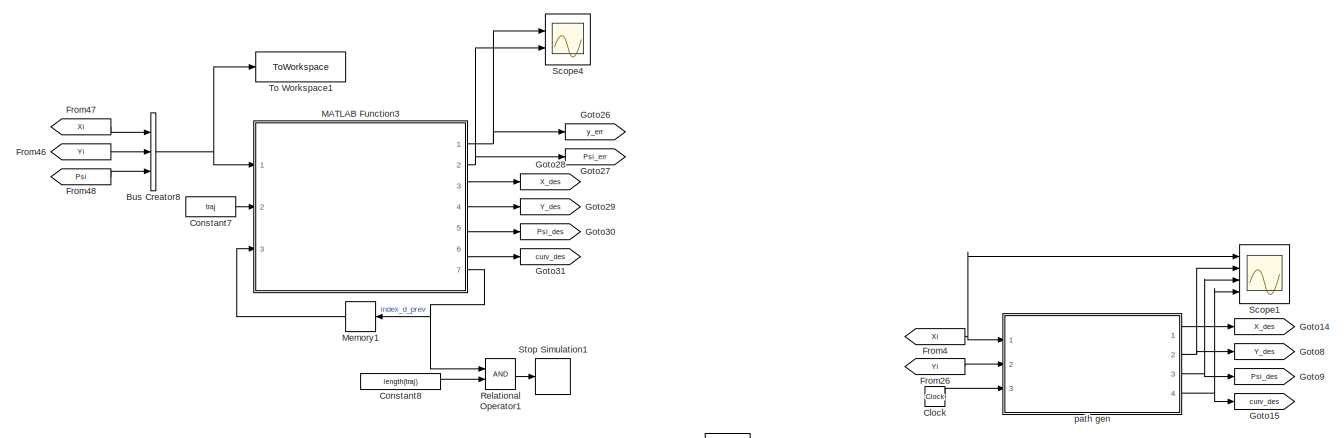
[diagram: root canvas - part 1/5, top left region]
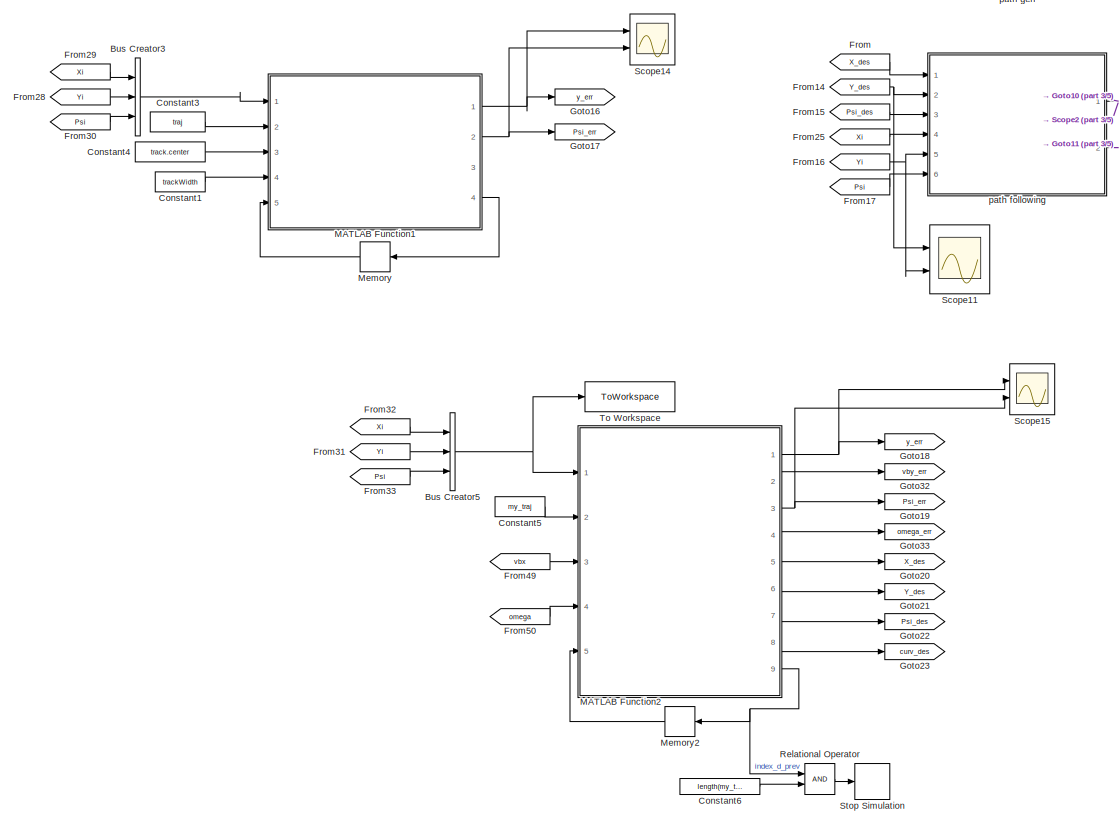
[diagram: root canvas - part 2/5, middle left region]
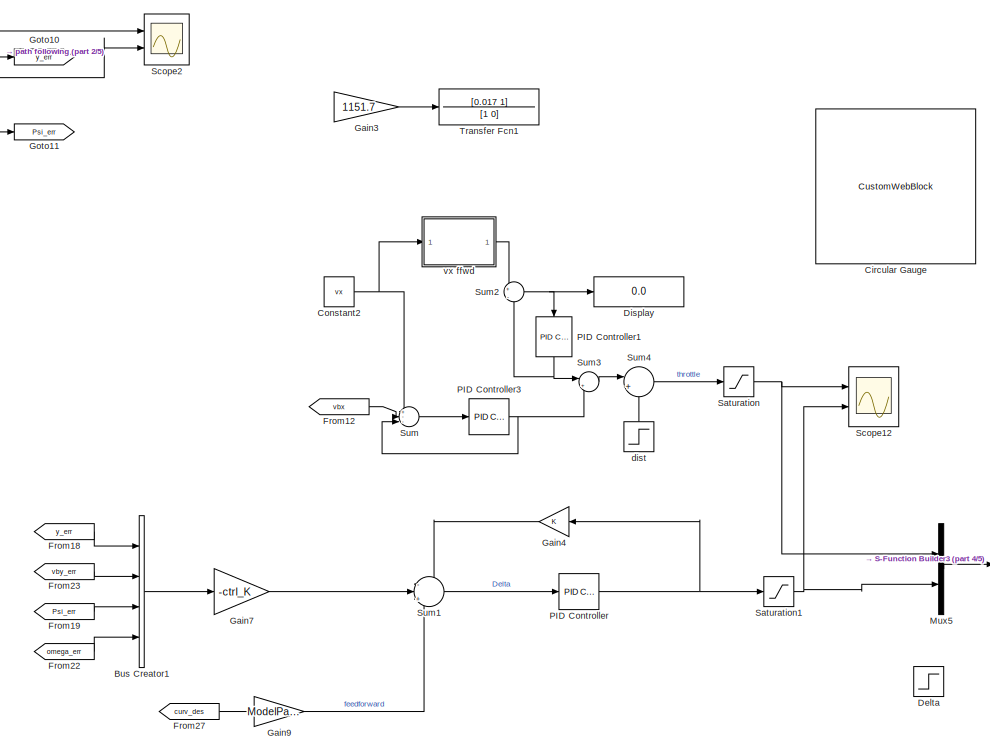
[diagram: root canvas - part 3/5, central region]
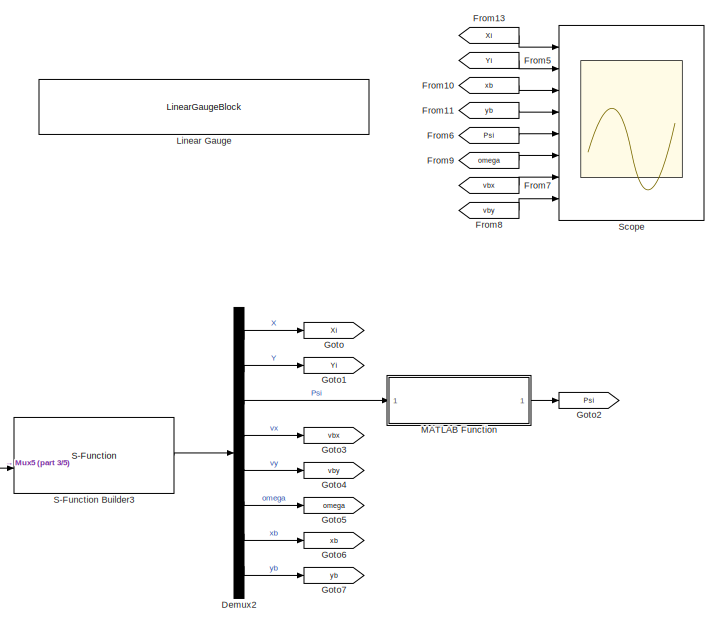
[diagram: root canvas - part 4/5, middle right region]
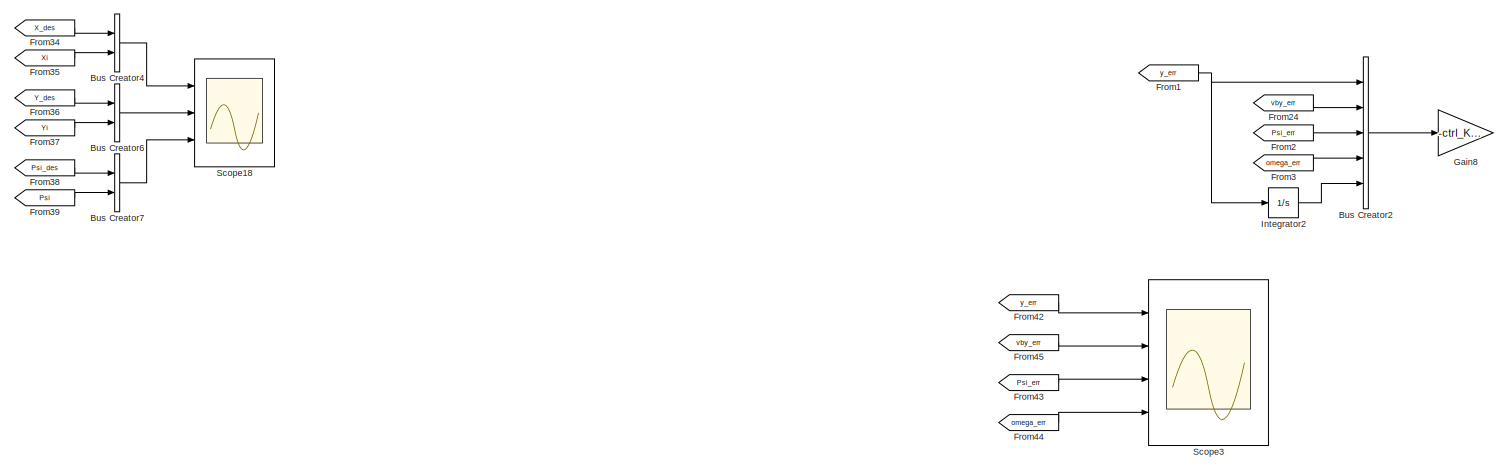
[diagram: root canvas - part 5/5, bottom center region]
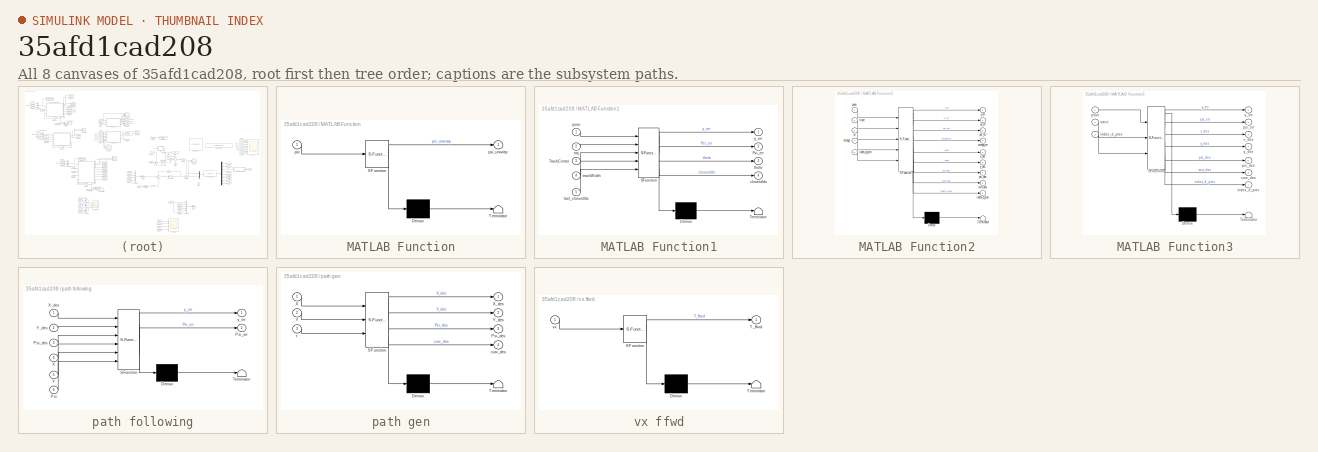
[diagram: thumbnail index - all 8 canvases of the model, root first then tree order]
MODEL slx_35afd1cad208
KIND model
CONFIG AbsTol = auto
CONFIG EnableMultiTasking = off
CONFIG FixedStep = 0.001
CONFIG InitFcn = init_car_dynamic
CONFIG MaxStep = auto
CONFIG MinStep = auto
CONFIG RelTol = 1e-3
CONFIG SampleTimeConstraint = Unconstrained
CONFIG SolverName = FixedStepAuto
CONFIG StartTime = 0.0
CONFIG StopFcn = plot_traj_results
CONFIG StopTime = 40
BLOCK [BusCreator] Bus Creator1
  DisplayOption = bar
  InheritFromInputs = on
  Inputs = 4
  Ports = [4, 1]
BLOCK [BusCreator] Bus Creator2
  DisplayOption = bar
  InheritFromInputs = on
  Inputs = 5
  Ports = [5, 1]
BLOCK [BusCreator] Bus Creator3
  Commented = on
  DisplayOption = bar
  InheritFromInputs = on
  Inputs = 3
  Ports = [3, 1]
BLOCK [BusCreator] Bus Creator4
  DisplayOption = bar
  InheritFromInputs = on
  Inputs = 2
  Ports = [2, 1]
BLOCK [BusCreator] Bus Creator5
  DisplayOption = bar
  InheritFromInputs = on
  Inputs = 3
  Ports = [3, 1]
BLOCK [BusCreator] Bus Creator6
  DisplayOption = bar
  InheritFromInputs = on
  Inputs = 2
  Ports = [2, 1]
BLOCK [BusCreator] Bus Creator7
  DisplayOption = bar
  InheritFromInputs = on
  Inputs = 2
  Ports = [2, 1]
BLOCK [BusCreator] Bus Creator8
  Commented = on
  DisplayOption = bar
  InheritFromInputs = on
  Inputs = 3
  Ports = [3, 1]
BLOCK [CustomWebBlock] Circular Gauge
  Configuration = {"components":[{"name":"CircularScaleComponent","settings":{"bounds":{"max":1,"min":0,"tickInterval":"auto"},"direction":"cw","flipLimits":0,"innerRadius":0.75,"internalTickHeightScaleFactor":1,"labelColor":[255,252,199],"labelFont":{"font":"Arial","fontSize":12},"labelTransparency":1,"minorTickHeightScaleFactor":0.2,"needleImage":{"size":[1890,567],"src":"data:image\/svg+xml;base64,PD94bWwgdmVyc2...<+16013ch>
  LabelPosition = Hide
  ShowInitialText = on
BLOCK [Clock] Clock
  Commented = on
BLOCK [Constant] Constant1
  Commented = on
  Value = trackWidth
BLOCK [Constant] Constant2
  Value = vx
BLOCK [Constant] Constant3
  Commented = on
  OutDataTypeStr = Bus: traj_bus
  Value = traj
  VectorParams1D = off
BLOCK [Constant] Constant4
  Commented = on
  Value = track.center
BLOCK [Constant] Constant5
  Value = my_traj
BLOCK [Constant] Constant6
  Value = length(my_traj)
BLOCK [Constant] Constant7
  Commented = on
  Value = traj
BLOCK [Constant] Constant8
  Commented = on
  Value = length(traj)
BLOCK [Step] Delta
  After = 0.05
  SampleTime = 0
  Time = 5
BLOCK [Demux] Demux2
  Outputs = 8
  Ports = [1, 8]
BLOCK [Display] Display
  Decimation = 1
  Ports = [1]
BLOCK [From] From
  Commented = on
  GotoTag = X_des
BLOCK [From] From1
  GotoTag = y_err
BLOCK [From] From10
  GotoTag = xb
BLOCK [From] From11
  GotoTag = yb
BLOCK [From] From12
  GotoTag = vbx
BLOCK [From] From13
  GotoTag = Xi
BLOCK [From] From14
  Commented = on
  GotoTag = Y_des
BLOCK [From] From15
  Commented = on
  GotoTag = Psi_des
BLOCK [From] From16
  Commented = on
  GotoTag = Yi
BLOCK [From] From17
  Commented = on
  GotoTag = Psi
BLOCK [From] From18
  GotoTag = y_err
BLOCK [From] From19
  GotoTag = Psi_err
BLOCK [From] From2
  GotoTag = Psi_err
BLOCK [From] From22
  GotoTag = omega_err
BLOCK [From] From23
  GotoTag = vby_err
BLOCK [From] From24
  GotoTag = vby_err
BLOCK [From] From25
  Commented = on
  GotoTag = Xi
BLOCK [From] From26
  Commented = on
  GotoTag = Yi
BLOCK [From] From27
  GotoTag = curv_des
BLOCK [From] From28
  Commented = on
  GotoTag = Yi
BLOCK [From] From29
  Commented = on
  GotoTag = Xi
BLOCK [From] From3
  GotoTag = omega_err
BLOCK [From] From30
  Commented = on
  GotoTag = Psi
BLOCK [From] From31
  GotoTag = Yi
BLOCK [From] From32
  GotoTag = Xi
BLOCK [From] From33
  GotoTag = Psi
BLOCK [From] From34
  GotoTag = X_des
BLOCK [From] From35
  GotoTag = Xi
BLOCK [From] From36
  GotoTag = Y_des
BLOCK [From] From37
  GotoTag = Yi
BLOCK [From] From38
  GotoTag = Psi_des
BLOCK [From] From39
  GotoTag = Psi
BLOCK [From] From4
  Commented = on
  GotoTag = Xi
BLOCK [From] From42
  GotoTag = y_err
BLOCK [From] From43
  GotoTag = Psi_err
BLOCK [From] From44
  GotoTag = omega_err
BLOCK [From] From45
  GotoTag = vby_err
BLOCK [From] From46
  Commented = on
  GotoTag = Yi
BLOCK [From] From47
  Commented = on
  GotoTag = Xi
BLOCK [From] From48
  Commented = on
  GotoTag = Psi
BLOCK [From] From49
  GotoTag = vbx
BLOCK [From] From5
  GotoTag = Yi
BLOCK [From] From50
  GotoTag = omega
BLOCK [From] From6
  GotoTag = Psi
BLOCK [From] From7
  GotoTag = vbx
BLOCK [From] From8
  GotoTag = vby
BLOCK [From] From9
  GotoTag = omega
BLOCK [Gain] Gain3
  Gain = 1151.7
BLOCK [Gain] Gain4
BLOCK [Gain] Gain7
  Gain = -ctrl_K
  Multiplication = Matrix(K*u) (u vector)
BLOCK [Gain] Gain8
  Gain = -ctrl_K_lqi
  Multiplication = Matrix(K*u) (u vector)
BLOCK [Gain] Gain9
  Gain = ModelParams.L
BLOCK [Goto] Goto
  GotoTag = Xi
BLOCK [Goto] Goto1
  GotoTag = Yi
BLOCK [Goto] Goto10
  Commented = on
  GotoTag = y_err
BLOCK [Goto] Goto11
  Commented = on
  GotoTag = Psi_err
BLOCK [Goto] Goto14
  Commented = on
  GotoTag = X_des
BLOCK [Goto] Goto15
  Commented = on
  GotoTag = curv_des
BLOCK [Goto] Goto16
  Commented = on
  GotoTag = y_err
BLOCK [Goto] Goto17
  Commented = on
  GotoTag = Psi_err
BLOCK [Goto] Goto18
  GotoTag = y_err
BLOCK [Goto] Goto19
  GotoTag = Psi_err
BLOCK [Goto] Goto2
  GotoTag = Psi
BLOCK [Goto] Goto20
  GotoTag = X_des
BLOCK [Goto] Goto21
  GotoTag = Y_des
BLOCK [Goto] Goto22
  GotoTag = Psi_des
BLOCK [Goto] Goto23
  GotoTag = curv_des
BLOCK [Goto] Goto26
  Commented = on
  GotoTag = y_err
BLOCK [Goto] Goto27
  Commented = on
  GotoTag = Psi_err
BLOCK [Goto] Goto28
  Commented = on
  GotoTag = X_des
BLOCK [Goto] Goto29
  Commented = on
  GotoTag = Y_des
BLOCK [Goto] Goto3
  GotoTag = vbx
BLOCK [Goto] Goto30
  Commented = on
  GotoTag = Psi_des
BLOCK [Goto] Goto31
  Commented = on
  GotoTag = curv_des
BLOCK [Goto] Goto32
  GotoTag = vby_err
BLOCK [Goto] Goto33
  GotoTag = omega_err
BLOCK [Goto] Goto4
  GotoTag = vby
BLOCK [Goto] Goto5
  GotoTag = omega
BLOCK [Goto] Goto6
  GotoTag = xb
BLOCK [Goto] Goto7
  GotoTag = yb
BLOCK [Goto] Goto8
  Commented = on
  GotoTag = Y_des
BLOCK [Goto] Goto9
  Commented = on
  GotoTag = Psi_des
BLOCK [Integrator] Integrator2
  Ports = [1, 1]
BLOCK [LinearGaugeBlock] Linear Gauge
  ScaleMax = 1.5
  ScaleMin = -1.5
BLOCK [SubSystem] MATLAB Function
  ErrorFcn = Stateflow.Translate.translate
  PermitHierarchicalResolution = ExplicitOnly
  Ports = [1, 1]
  RequestExecContextInheritance = off
  SFBlockType = MATLAB Function
  TreatAsAtomicUnit = on
BLOCK [Demux] MATLAB Function/ Demux 
  Outputs = 1
  Ports = [1, 1]
BLOCK [S-Function] MATLAB Function/ SFunction 
  EnableBusSupport = on
  FunctionName = sf_sfun
  PortCounts = [1 2]
  Ports = [1, 2]
  SFcnIsStateOwnerBlock = off
  SFunctionDeploymentMode = off
  Tag = Stateflow S-Function 3
BLOCK [Terminator] MATLAB Function/ Terminator 
BLOCK [Inport] MATLAB Function/psi
BLOCK [Outport] MATLAB Function/psi_unwrap
BLOCK [SubSystem] MATLAB Function1
  Commented = on
  ErrorFcn = Stateflow.Translate.translate
  PermitHierarchicalResolution = ExplicitOnly
  Ports = [5, 4]
  RequestExecContextInheritance = off
  SFBlockType = MATLAB Function
  TreatAsAtomicUnit = on
BLOCK [Demux] MATLAB Function1/ Demux 
  Outputs = 1
  Ports = [1, 1]
BLOCK [S-Function] MATLAB Function1/ SFunction 
  EnableBusSupport = on
  FunctionName = sf_sfun
  PortCounts = [5 5]
  Ports = [5, 5]
  SFcnIsStateOwnerBlock = off
  SFunctionDeploymentMode = off
  Tag = Stateflow S-Function 4
BLOCK [Terminator] MATLAB Function1/ Terminator 
BLOCK [Outport] MATLAB Function1/Psi_err
  Port = 2
BLOCK [Inport] MATLAB Function1/TrackCenter
  Port = 3
BLOCK [Outport] MATLAB Function1/closestIdx
  Port = 4
BLOCK [Inport] MATLAB Function1/last_closestIdx
  Port = 5
BLOCK [Inport] MATLAB Function1/pose
BLOCK [Outport] MATLAB Function1/theta
  Port = 3
BLOCK [Inport] MATLAB Function1/trackWidth
  Port = 4
BLOCK [Inport] MATLAB Function1/traj
  Port = 2
BLOCK [Outport] MATLAB Function1/y_err
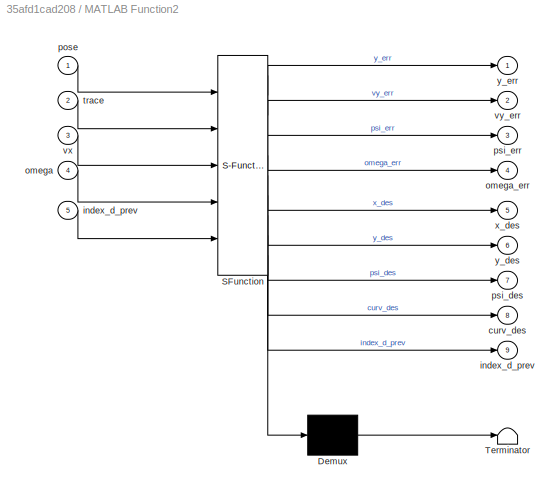
BLOCK [SubSystem] MATLAB Function2
  ErrorFcn = Stateflow.Translate.translate
  PermitHierarchicalResolution = ExplicitOnly
  Ports = [5, 9]
  RequestExecContextInheritance = off
  SFBlockType = MATLAB Function
  TreatAsAtomicUnit = on
BLOCK [Demux] MATLAB Function2/ Demux 
  Outputs = 1
  Ports = [1, 1]
BLOCK [S-Function] MATLAB Function2/ SFunction 
  EnableBusSupport = on
  FunctionName = sf_sfun
  PortCounts = [5 10]
  Ports = [5, 10]
  SFcnIsStateOwnerBlock = off
  SFunctionDeploymentMode = off
  Tag = Stateflow S-Function 5
BLOCK [Terminator] MATLAB Function2/ Terminator 
BLOCK [Outport] MATLAB Function2/curv_des
  Port = 8
BLOCK [Outport] MATLAB Function2/index_d_prev
  Port = 9
BLOCK [Inport] MATLAB Function2/index_d_prev 
  Port = 5
BLOCK [Inport] MATLAB Function2/omega
  Port = 4
BLOCK [Outport] MATLAB Function2/omega_err
  Port = 4
BLOCK [Inport] MATLAB Function2/pose
BLOCK [Outport] MATLAB Function2/psi_des
  Port = 7
BLOCK [Outport] MATLAB Function2/psi_err
  Port = 3
BLOCK [Inport] MATLAB Function2/trace
  Port = 2
BLOCK [Inport] MATLAB Function2/vx
  Port = 3
BLOCK [Outport] MATLAB Function2/vy_err
  Port = 2
BLOCK [Outport] MATLAB Function2/x_des
  Port = 5
BLOCK [Outport] MATLAB Function2/y_des
  Port = 6
BLOCK [Outport] MATLAB Function2/y_err
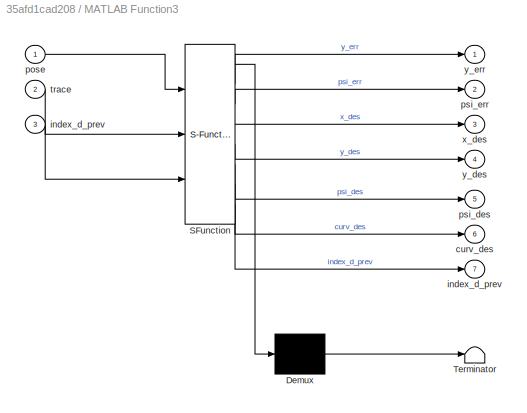
BLOCK [SubSystem] MATLAB Function3
  Commented = on
  ErrorFcn = Stateflow.Translate.translate
  PermitHierarchicalResolution = ExplicitOnly
  Ports = [3, 7]
  RequestExecContextInheritance = off
  SFBlockType = MATLAB Function
  TreatAsAtomicUnit = on
BLOCK [Demux] MATLAB Function3/ Demux 
  Outputs = 1
  Ports = [1, 1]
BLOCK [S-Function] MATLAB Function3/ SFunction 
  EnableBusSupport = on
  FunctionName = sf_sfun
  PortCounts = [3 8]
  Ports = [3, 8]
  SFcnIsStateOwnerBlock = off
  SFunctionDeploymentMode = off
  Tag = Stateflow S-Function 7
BLOCK [Terminator] MATLAB Function3/ Terminator 
BLOCK [Outport] MATLAB Function3/curv_des
  Port = 6
BLOCK [Outport] MATLAB Function3/index_d_prev
  Port = 7
BLOCK [Inport] MATLAB Function3/index_d_prev 
  Port = 3
BLOCK [Inport] MATLAB Function3/pose
BLOCK [Outport] MATLAB Function3/psi_des
  Port = 5
BLOCK [Outport] MATLAB Function3/psi_err
  Port = 2
BLOCK [Inport] MATLAB Function3/trace
  Port = 2
BLOCK [Outport] MATLAB Function3/x_des
  Port = 3
BLOCK [Outport] MATLAB Function3/y_des
  Port = 4
BLOCK [Outport] MATLAB Function3/y_err
BLOCK [Memory] Memory
  Commented = on
BLOCK [Memory] Memory1
  Commented = on
BLOCK [Memory] Memory2
BLOCK [Mux] Mux5
  DisplayOption = bar
  Inputs = 2
  Ports = [2, 1]
BLOCK [Reference] PID Controller  REF=slpidlib/PID Controller
  Ports = [1, 1]
  SourceBlock = slpidlib/PID Controller
  SourceProductBaseCode = SL
  SourceType = PID 1dof
BLOCK [Reference] PID Controller1  REF=slpidlib/PID Controller
  NameLocation = left
  Ports = [1, 1]
  SourceBlock = slpidlib/PID Controller
  SourceProductBaseCode = SL
  SourceType = PID 1dof
BLOCK [Reference] PID Controller3  REF=slpidlib/PID Controller
  Ports = [1, 1]
  SourceBlock = slpidlib/PID Controller
  SourceProductBaseCode = SL
  SourceType = PID 1dof
BLOCK [RelationalOperator] Relational Operator
  InputSameDT = off
  OutDataTypeStr = boolean
  Ports = [2, 1]
  RndMeth = Simplest
BLOCK [RelationalOperator] Relational Operator1
  Commented = on
  InputSameDT = off
  OutDataTypeStr = boolean
  Ports = [2, 1]
  RndMeth = Simplest
BLOCK [S-Function] S-Function Builder3
  CopyFcn = set_param(gcbh,'LinkStatus','none')
  EnableBusSupport = off
  FunctionName = car_fast_sfunc
  OpenFcn = sfunctionwizard(gcbh)
  Ports = [2, 1]
  SFcnIsStateOwnerBlock = off
  SFunctionDeploymentMode = off
  SFunctionModules = car_fast_sfunc_wrapper
BLOCK [Saturate] Saturation
  LowerLimit = 0
  UpperLimit = 1
BLOCK [Saturate] Saturation1
  LowerLimit = -pi/3
  UpperLimit = pi/3
BLOCK [Scope] Scope
  Floating = off
  NumInputPorts = 8
  Ports = [8]
  ScopeSpecificationString = Simulink.scopes.TimeScopeBlockCfg('CurrentConfiguration', extmgr.ConfigurationSet(extmgr.Configuration('Core','General UI',true),extmgr.Configuration('Core','Source UI',true),extmgr.Configuration('Sources','WiredSimulink',true,'DataLoggingVariableName','ScopeData1'),extmgr.Configuration('Visuals','Time Domain',true,'SerializedDisplays',{struct('MinYLimReal','-17.00419','MaxYLimReal','16.0254','YLa...<+6277ch>
BLOCK [Scope] Scope1
  Commented = on
  Floating = off
  NumInputPorts = 4
  Ports = [4]
  ScopeSpecificationString = Simulink.scopes.TimeScopeBlockCfg('CurrentConfiguration', extmgr.ConfigurationSet(extmgr.Configuration('Core','General UI',true),extmgr.Configuration('Core','Source UI',true),extmgr.Configuration('Sources','WiredSimulink',true,'DataLoggingVariableName','ScopeData1'),extmgr.Configuration('Visuals','Time Domain',true,'SerializedDisplays',{struct('MinYLimReal','-18.50871','MaxYLimReal','166.57841','Y...<+3411ch>
BLOCK [Scope] Scope11
  Commented = on
  Floating = off
  NumInputPorts = 2
  Ports = [2]
  ScopeSpecificationString = Simulink.scopes.TimeScopeBlockCfg('CurrentConfiguration', extmgr.ConfigurationSet(extmgr.Configuration('Core','General UI',true),extmgr.Configuration('Core','Source UI',true),extmgr.Configuration('Sources','WiredSimulink',true,'DataLoggingVariableName','ScopeData3'),extmgr.Configuration('Visuals','Time Domain',true,'SerializedDisplays',{struct('MinYLimReal','-1.25','MaxYLimReal','1.25','YLabelReal...<+1435ch>
BLOCK [Scope] Scope12
  Floating = off
  NumInputPorts = 2
  Ports = [2]
  ScopeSpecificationString = Simulink.scopes.TimeScopeBlockCfg('CurrentConfiguration', extmgr.ConfigurationSet(extmgr.Configuration('Core','General UI',true),extmgr.Configuration('Core','Source UI',true),extmgr.Configuration('Sources','WiredSimulink',true,'DataLoggingVariableName','ScopeData1'),extmgr.Configuration('Visuals','Time Domain',true,'SerializedDisplays',{struct('MinYLimReal','-0.125','MaxYLimReal','1.125','YLabelRe...<+2110ch>
BLOCK [Scope] Scope14
  Commented = on
  Floating = off
  NumInputPorts = 2
  Ports = [2]
  ScopeSpecificationString = Simulink.scopes.TimeScopeBlockCfg('CurrentConfiguration', extmgr.ConfigurationSet(extmgr.Configuration('Core','General UI',true),extmgr.Configuration('Core','Source UI',true),extmgr.Configuration('Sources','WiredSimulink',true,'DataLoggingVariableName','ScopeData1'),extmgr.Configuration('Visuals','Time Domain',true,'SerializedDisplays',{struct('MinYLimReal','-0.22073','MaxYLimReal','0.16661','YLab...<+2088ch>
BLOCK [Scope] Scope15
  Floating = off
  NumInputPorts = 2
  Ports = [2]
  ScopeSpecificationString = Simulink.scopes.TimeScopeBlockCfg('CurrentConfiguration', extmgr.ConfigurationSet(extmgr.Configuration('Core','General UI',true),extmgr.Configuration('Core','Source UI',true),extmgr.Configuration('Sources','WiredSimulink',true,'DataLoggingVariableName','ScopeData2'),extmgr.Configuration('Visuals','Time Domain',true,'SerializedDisplays',{struct('MinYLimReal','-0.73247','MaxYLimReal','0.18373','YLab...<+2160ch>
BLOCK [Scope] Scope18
  Floating = off
  NumInputPorts = 3
  Ports = [3]
  ScopeSpecificationString = Simulink.scopes.TimeScopeBlockCfg('CurrentConfiguration', extmgr.ConfigurationSet(extmgr.Configuration('Core','General UI',true),extmgr.Configuration('Core','Source UI',true),extmgr.Configuration('Sources','WiredSimulink',true,'DataLoggingVariableName','ScopeData5'),extmgr.Configuration('Visuals','Time Domain',true,'SerializedDisplays',{struct('MinYLimReal','-2.76827','MaxYLimReal','15.12944','YLa...<+2798ch>
BLOCK [Scope] Scope2
  Commented = on
  Floating = off
  NumInputPorts = 2
  Ports = [2]
  ScopeSpecificationString = Simulink.scopes.TimeScopeBlockCfg('CurrentConfiguration', extmgr.ConfigurationSet(extmgr.Configuration('Core','General UI',true),extmgr.Configuration('Core','Source UI',true),extmgr.Configuration('Sources','WiredSimulink',true,'DataLoggingVariableName','ScopeData2'),extmgr.Configuration('Visuals','Time Domain',true,'SerializedDisplays',{struct('MinYLimReal','-0.22073','MaxYLimReal','0.16661','YLab...<+2130ch>
BLOCK [Scope] Scope3
  Floating = off
  NumInputPorts = 4
  Ports = [4]
  ScopeSpecificationString = Simulink.scopes.TimeScopeBlockCfg('CurrentConfiguration', extmgr.ConfigurationSet(extmgr.Configuration('Core','General UI',true),extmgr.Configuration('Core','Source UI',true),extmgr.Configuration('Sources','WiredSimulink',true,'DataLoggingVariableName','ScopeData1'),extmgr.Configuration('Visuals','Time Domain',true,'SerializedDisplays',{struct('MinYLimReal','-0.19749','MaxYLimReal','0.14418','YLab...<+3472ch>
BLOCK [Scope] Scope4
  Commented = on
  Floating = off
  NumInputPorts = 2
  Ports = [2]
  ScopeSpecificationString = Simulink.scopes.TimeScopeBlockCfg('CurrentConfiguration', extmgr.ConfigurationSet(extmgr.Configuration('Core','General UI',true),extmgr.Configuration('Core','Source UI',true),extmgr.Configuration('Sources','WiredSimulink',true,'DataLoggingVariableName','ScopeData1'),extmgr.Configuration('Visuals','Time Domain',true,'SerializedDisplays',{struct('MinYLimReal','-0.73247','MaxYLimReal','0.18373','YLab...<+2160ch>
BLOCK [Stop] Stop Simulation
BLOCK [Stop] Stop Simulation1
  Commented = on
BLOCK [Sum] Sum
  Inputs = +--|
  Ports = [3, 1]
BLOCK [Sum] Sum1
  Inputs = -|+|+
  Ports = [3, 1]
BLOCK [Sum] Sum2
  Inputs = +|-
  Ports = [2, 1]
BLOCK [Sum] Sum3
  Inputs = |++
  Ports = [2, 1]
BLOCK [Sum] Sum4
  Inputs = |++
  Ports = [2, 1]
BLOCK [ToWorkspace] To Workspace
  FixptAsFi = on
  MaxDataPoints = inf
  Ports = [1]
  SampleTime = -1
  SaveFormat = Timeseries
  VariableName = simout
BLOCK [ToWorkspace] To Workspace1
  Commented = on
  FixptAsFi = on
  MaxDataPoints = inf
  Ports = [1]
  SampleTime = -1
  SaveFormat = Timeseries
  VariableName = simout1
BLOCK [TransferFcn] Transfer Fcn1
  Denominator = [1 0]
  Numerator = [0.017 1]
BLOCK [Step] dist
  After = -0.05
  NameLocation = right
  SampleTime = 0
BLOCK [SubSystem] path following
  Commented = on
  ErrorFcn = Stateflow.Translate.translate
  PermitHierarchicalResolution = ExplicitOnly
  Ports = [6, 2]
  RequestExecContextInheritance = off
  SFBlockType = MATLAB Function
  TreatAsAtomicUnit = on
BLOCK [Demux] path following/ Demux 
  Outputs = 1
  Ports = [1, 1]
BLOCK [S-Function] path following/ SFunction 
  EnableBusSupport = on
  FunctionName = sf_sfun
  PortCounts = [6 3]
  Ports = [6, 3]
  SFcnIsStateOwnerBlock = off
  SFunctionDeploymentMode = off
  Tag = Stateflow S-Function 1
BLOCK [Terminator] path following/ Terminator 
BLOCK [Inport] path following/Psi
  Port = 6
BLOCK [Inport] path following/Psi_des
  Port = 3
BLOCK [Outport] path following/Psi_err
  Port = 2
BLOCK [Inport] path following/X
  Port = 4
BLOCK [Inport] path following/X_des
BLOCK [Inport] path following/Y
  Port = 5
BLOCK [Inport] path following/Y_des
  Port = 2
BLOCK [Outport] path following/y_err
BLOCK [SubSystem] path gen
  Commented = on
  ErrorFcn = Stateflow.Translate.translate
  PermitHierarchicalResolution = ExplicitOnly
  Ports = [3, 4]
  RequestExecContextInheritance = off
  SFBlockType = MATLAB Function
  TreatAsAtomicUnit = on
BLOCK [Demux] path gen/ Demux 
  Outputs = 1
  Ports = [1, 1]
BLOCK [S-Function] path gen/ SFunction 
  EnableBusSupport = on
  FunctionName = sf_sfun
  PortCounts = [3 5]
  Ports = [3, 5]
  SFcnIsStateOwnerBlock = off
  SFunctionDeploymentMode = off
  Tag = Stateflow S-Function 2
BLOCK [Terminator] path gen/ Terminator 
BLOCK [Outport] path gen/Psi_des
  Port = 3
BLOCK [Inport] path gen/X
BLOCK [Outport] path gen/X_des
BLOCK [Inport] path gen/Y
  Port = 2
BLOCK [Outport] path gen/Y_des
  Port = 2
BLOCK [Outport] path gen/curv_des
  Port = 4
BLOCK [Inport] path gen/t
  Port = 3
BLOCK [SubSystem] vx ffwd
  ErrorFcn = Stateflow.Translate.translate
  PermitHierarchicalResolution = ExplicitOnly
  Ports = [1, 1]
  RequestExecContextInheritance = off
  SFBlockType = MATLAB Function
  TreatAsAtomicUnit = on
BLOCK [Demux] vx ffwd/ Demux 
  Outputs = 1
  Ports = [1, 1]
BLOCK [S-Function] vx ffwd/ SFunction 
  EnableBusSupport = on
  FunctionName = sf_sfun
  PortCounts = [1 2]
  Ports = [1, 2]
  SFcnIsStateOwnerBlock = off
  SFunctionDeploymentMode = off
  Tag = Stateflow S-Function 6
BLOCK [Terminator] vx ffwd/ Terminator 
BLOCK [Outport] vx ffwd/T_ffwd
BLOCK [Inport] vx ffwd/vx
LINE Bus Creator1:1 -> Gain7:1
LINE Bus Creator2:1 -> Gain8:1
LINE Bus Creator3:1 -> MATLAB Function1:1
LINE Bus Creator4:1 -> Scope18:1
NET Bus Creator5:1 -> MATLAB Function2:1, To Workspace:1
LINE Bus Creator6:1 -> Scope18:2
LINE Bus Creator7:1 -> Scope18:3
NET Bus Creator8:1 -> MATLAB Function3:1, To Workspace1:1
LINE Clock:1 -> path gen:3
LINE Constant1:1 -> MATLAB Function1:4
NET Constant2:1 -> Sum:1, vx ffwd:1
LINE Constant3:1 -> MATLAB Function1:2
LINE Constant4:1 -> MATLAB Function1:3
LINE Constant5:1 -> MATLAB Function2:2
LINE Constant6:1 -> Relational Operator:2
LINE Constant7:1 -> MATLAB Function3:2
LINE Constant8:1 -> Relational Operator1:2
LINE Demux2:1 -> Goto:1
LINE Demux2:2 -> Goto1:1
LINE Demux2:3 -> MATLAB Function:1
LINE Demux2:4 -> Goto3:1
LINE Demux2:5 -> Goto4:1
LINE Demux2:6 -> Goto5:1
LINE Demux2:7 -> Goto6:1
LINE Demux2:8 -> Goto7:1
LINE From10:1 -> Scope:3
LINE From11:1 -> Scope:4
LINE From12:1 -> Sum:2
LINE From13:1 -> Scope:1
NET From14:1 -> Scope11:1, path following:2
LINE From15:1 -> path following:3
NET From16:1 -> Scope11:2, path following:5
LINE From17:1 -> path following:6
LINE From18:1 -> Bus Creator1:1
LINE From19:1 -> Bus Creator1:3
NET From1:1 -> Bus Creator2:1, Integrator2:1
LINE From22:1 -> Bus Creator1:4
LINE From23:1 -> Bus Creator1:2
LINE From24:1 -> Bus Creator2:2
LINE From25:1 -> path following:4
LINE From26:1 -> path gen:2
LINE From27:1 -> Gain9:1
LINE From28:1 -> Bus Creator3:2
LINE From29:1 -> Bus Creator3:1
LINE From2:1 -> Bus Creator2:3
LINE From30:1 -> Bus Creator3:3
LINE From31:1 -> Bus Creator5:2
LINE From32:1 -> Bus Creator5:1
LINE From33:1 -> Bus Creator5:3
LINE From34:1 -> Bus Creator4:1
LINE From35:1 -> Bus Creator4:2
LINE From36:1 -> Bus Creator6:1
LINE From37:1 -> Bus Creator6:2
LINE From38:1 -> Bus Creator7:1
LINE From39:1 -> Bus Creator7:2
LINE From3:1 -> Bus Creator2:4
LINE From42:1 -> Scope3:1
LINE From43:1 -> Scope3:3
LINE From44:1 -> Scope3:4
LINE From45:1 -> Scope3:2
LINE From46:1 -> Bus Creator8:2
LINE From47:1 -> Bus Creator8:1
LINE From48:1 -> Bus Creator8:3
LINE From49:1 -> MATLAB Function2:3
NET From4:1 -> Scope1:1, path gen:1
LINE From50:1 -> MATLAB Function2:4
LINE From5:1 -> Scope:2
LINE From6:1 -> Scope:5
LINE From7:1 -> Scope:7
LINE From8:1 -> Scope:8
LINE From9:1 -> Scope:6
LINE From:1 -> path following:1
LINE Gain3:1 -> Transfer Fcn1:1
LINE Gain4:1 -> Sum1:1
LINE Gain7:1 -> Sum1:2
LINE Gain9:1 -> Sum1:3
LINE Integrator2:1 -> Bus Creator2:5
NET MATLAB Function1:1 -> Goto16:1, Scope14:1
NET MATLAB Function1:2 -> Goto17:1, Scope14:2
LINE MATLAB Function1:4 -> Memory:1
NET MATLAB Function2:1 -> Goto18:1, Scope15:1
LINE MATLAB Function2:2 -> Goto32:1
NET MATLAB Function2:3 -> Goto19:1, Scope15:2
LINE MATLAB Function2:4 -> Goto33:1
LINE MATLAB Function2:5 -> Goto20:1
LINE MATLAB Function2:6 -> Goto21:1
LINE MATLAB Function2:7 -> Goto22:1
LINE MATLAB Function2:8 -> Goto23:1
NET MATLAB Function2:9 -> Memory2:1, Relational Operator:1
NET MATLAB Function3:1 -> Goto26:1, Scope4:1
NET MATLAB Function3:2 -> Goto27:1, Scope4:2
LINE MATLAB Function3:3 -> Goto28:1
LINE MATLAB Function3:4 -> Goto29:1
LINE MATLAB Function3:5 -> Goto30:1
LINE MATLAB Function3:6 -> Goto31:1
NET MATLAB Function3:7 -> Memory1:1, Relational Operator1:1
LINE MATLAB Function:1 -> Goto2:1
LINE Memory1:1 -> MATLAB Function3:3
LINE Memory2:1 -> MATLAB Function2:5
LINE Memory:1 -> MATLAB Function1:5
LINE Mux5:1 -> S-Function Builder3:2
NET PID Controller1:1 -> Sum2:2, Sum3:1
NET PID Controller3:1 -> Sum3:2, Sum:3
NET PID Controller:1 -> Gain4:1, Saturation1:1
LINE Relational Operator1:1 -> Stop Simulation1:1
LINE Relational Operator:1 -> Stop Simulation:1
LINE S-Function Builder3:1 -> Demux2:1
NET Saturation1:1 -> Mux5:2, Scope12:2
NET Saturation:1 -> Mux5:1, Scope12:1
LINE Sum1:1 -> PID Controller:1
NET Sum2:1 -> Display:1, PID Controller1:1
LINE Sum3:1 -> Sum4:1
LINE Sum4:1 -> Saturation:1
LINE Sum:1 -> PID Controller3:1
LINE dist:1 -> Sum4:2
NET path following:1 -> Goto10:1, Scope2:1
NET path following:2 -> Goto11:1, Scope2:2
LINE path gen:1 -> Goto14:1
NET path gen:2 -> Goto8:1, Scope1:2
NET path gen:3 -> Goto9:1, Scope1:3
NET path gen:4 -> Goto15:1, Scope1:4
LINE vx ffwd:1 -> Sum2:1
note: NET lines group one-source signal fan-out (src -> all destinations, sorted); 1:1 wires keep LINE
CHART MATLAB Function3 states=1 transitions=1
  STATE_LABEL 'eML_blk_kernel()'
  STATE_LABEL 'SCRIPT:\nfunction [y_err,psi_err,x_des,y_des,psi_des,curv_des, index_d_prev]=cal_nearest_index(pose, trace, index_d_prev)\n\ntraj_x=trace(1,:);      %给定x坐标\ntraj_y=trace(2,:);      %给定y坐标\ntraj_psi=trace(3,:);    %给定航向角Psi\ntraj_k=trace(4,:);      %曲率\n\nx = pose(1);\ny = pose(2);\npsi = pose(3);\n\ndx=x*ones(1,length(traj_x))-traj_x;\ndy=y*ones(1,length(traj_y))-traj_y;\n\n% find the nearest index\nd=dx.^2+dy.^2...<+734ch>'
CHART path following states=1 transitions=1
  STATE_LABEL 'eML_blk_kernel()'
  STATE_LABEL 'SCRIPT:\nfunction [y_err,Psi_err] = path_following(X_des,Y_des,Psi_des,X,Y,Psi)\n\n\ny_err = (Y-Y_des)/cos(Psi)*2;\n\n% y_err = -(X-X_des)/sin(Psi);\n\nPsi_err = (Psi - Psi_des)*2;'
CHART path gen states=1 transitions=1
  STATE_LABEL 'eML_blk_kernel()'
  STATE_LABEL 'SCRIPT:\nfunction [X_des,Y_des,Psi_des,curv_des] = path_generator(X,Y,t)\n\npath_omega = 0.01+0.001*t;\nX_des=X;\nY_des=sin(path_omega*X);\nPsi_des = atan(path_omega*cos(path_omega*X));\n\n% TODO: add curvature: https://en.wikipedia.org/wiki/Curvature\n% curv_des = (-path_omega^2*sin(path_omega*X))/(1+(path_omega*cos(path_omega*X))^2)^1.5;\n\npath_omega = 0.3;\nX_des = 10*sin(path_omega*t);\nY_des = 10-10*cos(...<+122ch>'
CHART MATLAB Function states=1 transitions=1
  STATE_LABEL 'eML_blk_kernel()'
  STATE_LABEL 'SCRIPT:\nfunction psi_unwrap = unwrap(psi)\n\nif ( psi > pi)\n    psi = psi - 2*pi;\nend\n\nif( psi <= -pi)\n    psi = psi + 2*pi;\nend\n\npsi_unwrap = psi;\n'
CHART MATLAB Function1 states=1 transitions=1
  STATE_LABEL 'eML_blk_kernel()'
  STATE_LABEL 'SCRIPT:\nfunction [y_err, Psi_err, theta, closestIdx] = path_following(pose, traj, TrackCenter, trackWidth, last_closestIdx)\n%FINDTHETA returns theta, the index of the point on the centerline which is the\n%closest to the current position\n\n%the algorithm first performs a local search around a guess where the\n%closest point on the center line is if the error is too big (more than\n%half the track widt...<+2797ch>'
CHART MATLAB Function2 states=1 transitions=1
  STATE_LABEL 'eML_blk_kernel()'
  STATE_LABEL 'SCRIPT:\nfunction [y_err,vy_err,psi_err,omega_err,x_des,y_des,psi_des,curv_des, index_d_prev]=cal_nearest_index(pose,trace,vx, omega, index_d_prev)\n\ntraj_x=trace(1,:);      %给定x坐标\ntraj_y=trace(2,:);      %给定y坐标\ntraj_psi=trace(3,:);\ntraj_k=trace(4,:);      %曲率\n\n\nx = pose(1);\ny = pose(2);\npsi = pose(3);\n\ndx=x*ones(1,length(traj_x))-traj_x;\ndy=y*ones(1,length(traj_y))-traj_y;\n\n% find the nearest index...<+873ch>'
CHART vx ffwd states=1 transitions=1
  STATE_LABEL 'eML_blk_kernel()'
  STATE_LABEL 'SCRIPT:\nfunction T_ffwd = fcn(vx)\n\nm = 0.041;\ng = 9.8;\nIz = 27.8e-6;\nlf = 0.029;\nlr = 0.033;\nCm1=0.287;\nCm2=0.0545;\nCr0=0.0218;\nCr2=0.00035;\n\nNf = m*g*lr/(lf+lr);\nNr = m*g*lf/(lf+lr);\n\nT_ffwd = -(-Cr0*m*g-2*Cr2*vx^2)/(Cm1-Cm2*vx);\n\n\n'
CHART  states=0 transitions=0
CHART  states=0 transitions=0
CHART  states=0 transitions=0
CHART  states=0 transitions=0
CHART  states=0 transitions=0
CHART  states=0 transitions=0
CHART  states=0 transitions=0
